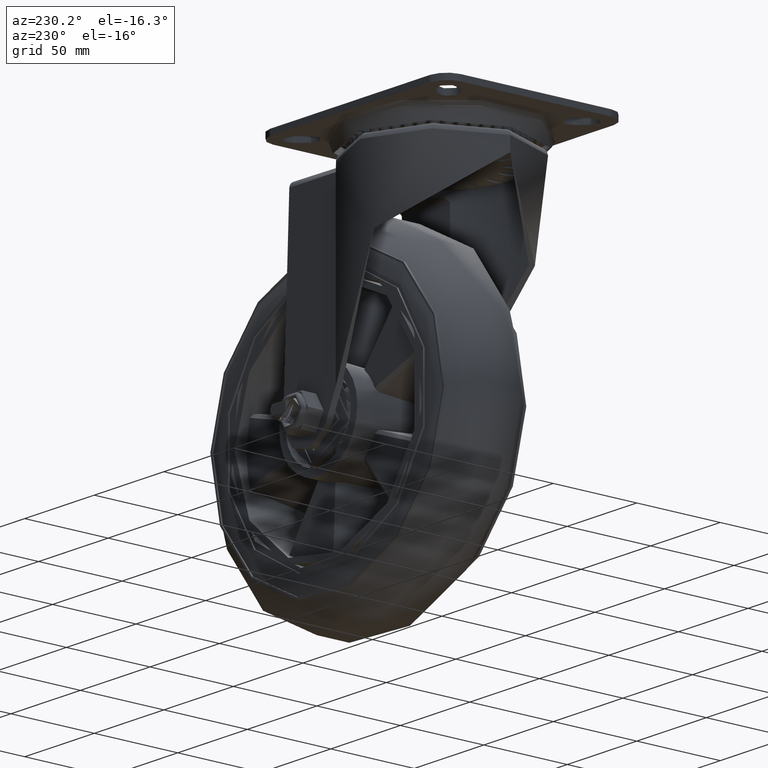
[diagram: clean part render]
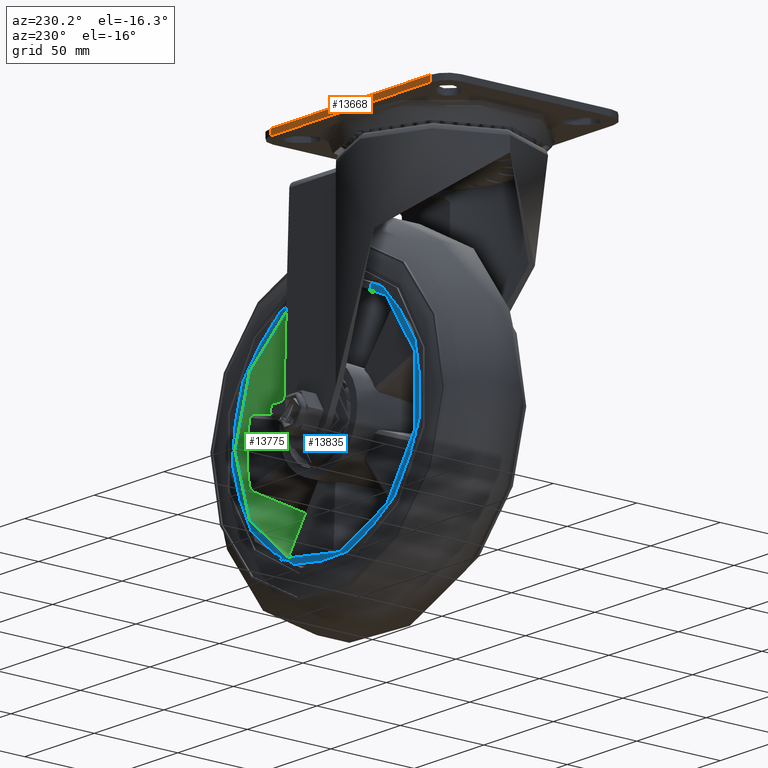
[diagram: same view with three faces highlighted in distinct colors, each labeled with its STEP entity id]
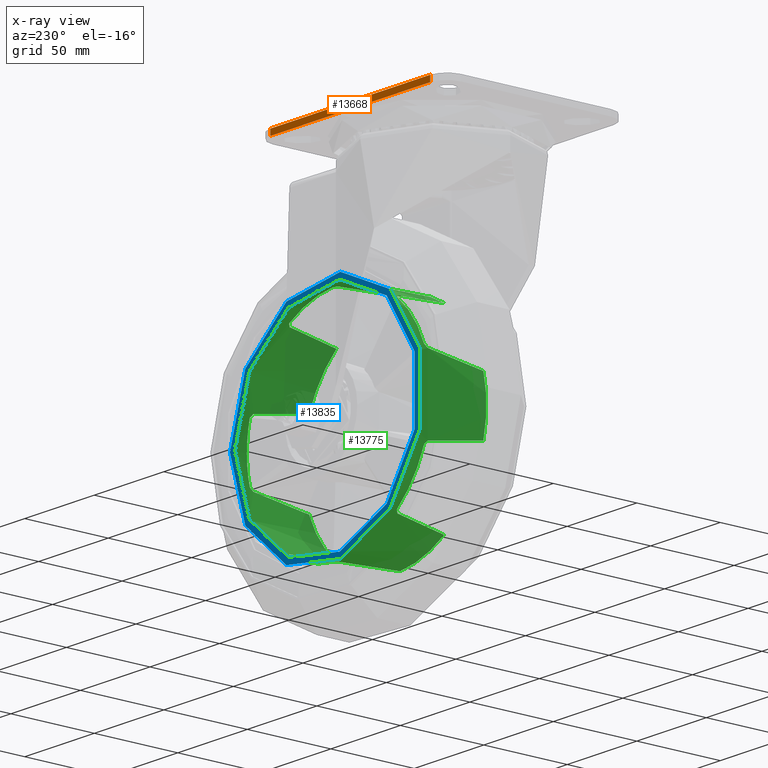
[diagram: x-ray of the same camera — body ghosted, the three highlighted faces saturated]
A machine part, auxiliary view with three faces highlighted in distinct colors.
The next image is the same camera in x-ray (body ghosted, the three faces saturated) — at least one of them is partly hidden behind the body in this view.
Their STEP definitions:

[orange] entity #13668 — the highlighted planar face has unit normal (0, 1, 0).
#935=PLANE('',#14785);
#2007=FACE_OUTER_BOUND('',#2845,.T.);
#2845=EDGE_LOOP('',(#9715,#9716,#9717,#9718));
#3748=LINE('',#19288,#4579);
#3753=LINE('',#19312,#4584);
#3761=LINE('',#20266,#4592);
#3807=LINE('',#22129,#4638);
#4579=VECTOR('',#15950,1000.);
#4584=VECTOR('',#15971,1000.);
#4592=VECTOR('',#16139,1000.);
#4638=VECTOR('',#16271,1000.);
#5959=VERTEX_POINT('',#19281);
#5962=VERTEX_POINT('',#19286);
#5972=VERTEX_POINT('',#19309);
#5973=VERTEX_POINT('',#19311);
#7321=EDGE_CURVE('',#5962,#5959,#3748,.T.);
#7331=EDGE_CURVE('',#5972,#5973,#3753,.T.);
#7438=EDGE_CURVE('',#5962,#5973,#3761,.T.);
#7487=EDGE_CURVE('',#5972,#5959,#3807,.F.);
#9715=ORIENTED_EDGE('',*,*,#7321,.F.);
#9716=ORIENTED_EDGE('',*,*,#7438,.T.);
#9717=ORIENTED_EDGE('',*,*,#7331,.F.);
#9718=ORIENTED_EDGE('',*,*,#7487,.T.);
#13668=ADVANCED_FACE('',(#2007),#935,.T.);
#14785=AXIS2_PLACEMENT_3D('',#22142,#16287,#16288);
#15950=DIRECTION('',(0.,0.,1.));
#15971=DIRECTION('',(0.,0.,-1.));
#16139=DIRECTION('',(-1.,0.,0.));
#16271=DIRECTION('',(-1.,0.,0.));
#16287=DIRECTION('center_axis',(0.,1.,0.));
#16288=DIRECTION('ref_axis',(1.,0.,0.));
#19281=CARTESIAN_POINT('',(57.5,55.,0.));
#19286=CARTESIAN_POINT('',(57.5,55.,-3.5));
#19288=CARTESIAN_POINT('',(57.5,55.,0.));
#19309=CARTESIAN_POINT('',(-57.5,55.,0.));
#19311=CARTESIAN_POINT('',(-57.5,55.,-3.5));
#19312=CARTESIAN_POINT('',(-57.5,55.,0.));
#20266=CARTESIAN_POINT('',(0.,55.,-3.5));
#22129=CARTESIAN_POINT('',(0.,55.,0.));
#22142=CARTESIAN_POINT('Origin',(0.,55.,0.));

[blue] entity #13835 — the highlighted planar face has unit normal (-0, 1, -0).
#774=FACE_BOUND('',#3038,.T.);
#1006=PLANE('',#15086);
#2174=FACE_OUTER_BOUND('',#3037,.T.);
#3037=EDGE_LOOP('',(#10563));
#3038=EDGE_LOOP('',(#10564));
#5550=CIRCLE('',#15004,69.5);
#5565=CIRCLE('',#15021,66.);
#6215=VERTEX_POINT('',#23325);
#6251=VERTEX_POINT('',#23550);
#7723=EDGE_CURVE('',#6215,#6215,#5550,.T.);
#7761=EDGE_CURVE('',#6251,#6251,#5565,.T.);
#10563=ORIENTED_EDGE('',*,*,#7723,.T.);
#10564=ORIENTED_EDGE('',*,*,#7761,.F.);
#13835=ADVANCED_FACE('',(#2174,#774),#1006,.T.);
#15004=AXIS2_PLACEMENT_3D('',#23326,#16841,#16842);
#15021=AXIS2_PLACEMENT_3D('',#23552,#16878,#16879);
#15086=AXIS2_PLACEMENT_3D('',#29875,#17013,#17014);
#16841=DIRECTION('center_axis',(-3.38669239203968E-15,1.,0.));
#16842=DIRECTION('ref_axis',(-1.,-3.38669239203968E-15,0.));
#16878=DIRECTION('center_axis',(-3.38669239203968E-15,1.,0.));
#16879=DIRECTION('ref_axis',(-1.,-3.38669239203968E-15,0.));
#17013=DIRECTION('center_axis',(-3.49148336110938E-15,1.,0.));
#17014=DIRECTION('ref_axis',(-1.,-3.49148336110938E-15,0.));
#23325=CARTESIAN_POINT('',(69.4999999999999,25.0000000000002,8.5112952540741E-15));
#23326=CARTESIAN_POINT('Origin',(-9.16062037048994E-14,25.,0.));
#23550=CARTESIAN_POINT('',(65.9999999999999,25.0000000000002,8.08266887437253E-15));
#23552=CARTESIAN_POINT('Origin',(-9.16062037048994E-14,25.,0.));
#29875=CARTESIAN_POINT('Origin',(-67.7500000000001,24.9999999999998,0.));

[green] entity #13775 — the highlighted cylindrical surface (bore or boss wall) has radius 66 mm, axis along (-0, 1, -0).
#1334=B_SPLINE_CURVE_WITH_KNOTS('',3,(#23556,#23557,#23558,#23559,#23560,
#23561,#23562,#23563,#23564,#23565),.UNSPECIFIED.,.F.,.F.,(4,2,2,2,4),(-0.278699813816485,
-0.209070207863523,-0.139448428689575,-0.0697253855537715,0.),
 .UNSPECIFIED.);
#1335=B_SPLINE_CURVE_WITH_KNOTS('',3,(#23567,#23568,#23569,#23570,#23571,
#23572,#23573),.UNSPECIFIED.,.F.,.F.,(4,3,4),(0.000513477992855273,1.61946630273181,
3.23842418673045),.UNSPECIFIED.);
#1336=B_SPLINE_CURVE_WITH_KNOTS('',3,(#23577,#23578,#23579,#23580,#23581,
#23582,#23583),.UNSPECIFIED.,.F.,.F.,(4,3,4),(0.000373308302893348,1.61933111573556,
3.23828386336791),.UNSPECIFIED.);
#1337=B_SPLINE_CURVE_WITH_KNOTS('',3,(#23585,#23586,#23587,#23588,#23589,
#23590,#23591,#23592,#23593,#23594),.UNSPECIFIED.,.F.,.F.,(4,2,2,2,4),(-0.278702463877924,
-0.209075459050144,-0.139449822925645,-0.0697292166375535,-4.15839584988476E-11),
 .UNSPECIFIED.);
#1338=B_SPLINE_CURVE_WITH_KNOTS('',3,(#23598,#23599,#23600,#23601,#23602,
#23603,#23604,#23605,#23606,#23607),.UNSPECIFIED.,.F.,.F.,(4,2,2,2,4),(-0.278699813708416,
-0.209070208613181,-0.139448428606743,-0.0697253854730322,0.),
 .UNSPECIFIED.);
#1339=B_SPLINE_CURVE_WITH_KNOTS('',3,(#23609,#23610,#23611,#23612,#23613,
#23614,#23615),.UNSPECIFIED.,.F.,.F.,(4,3,4),(0.000513477992861687,1.61946630273041,
3.23842418706975),.UNSPECIFIED.);
#1340=B_SPLINE_CURVE_WITH_KNOTS('',3,(#23619,#23620,#23621,#23622,#23623,
#23624,#23625),.UNSPECIFIED.,.F.,.F.,(4,3,4),(0.00037330972865679,1.61933111574341,
3.23828386337399),.UNSPECIFIED.);
#1341=B_SPLINE_CURVE_WITH_KNOTS('',3,(#23627,#23628,#23629,#23630,#23631,
#23632,#23633,#23634,#23635,#23636),.UNSPECIFIED.,.F.,.F.,(4,2,2,2,4),(-0.278702464616803,
-0.209075459565348,-0.13944982312942,-0.0697292168004534,-1.53057622132025E-10),
 .UNSPECIFIED.);
#1342=B_SPLINE_CURVE_WITH_KNOTS('',3,(#23640,#23641,#23642,#23643,#23644,
#23645,#23646,#23647,#23648,#23649),.UNSPECIFIED.,.F.,.F.,(4,2,2,2,4),(-0.278699813846202,
-0.209070207879666,-0.139448428698381,-0.0697253855483401,0.),
 .UNSPECIFIED.);
#1343=B_SPLINE_CURVE_WITH_KNOTS('',3,(#23651,#23652,#23653,#23654,#23655,
#23656,#23657),.UNSPECIFIED.,.F.,.F.,(4,3,4),(0.000373309048171521,1.6193311157353,
3.2382838633681),.UNSPECIFIED.);
#1344=B_SPLINE_CURVE_WITH_KNOTS('',3,(#23661,#23662,#23663,#23664,#23665,
#23666,#23667),.UNSPECIFIED.,.F.,.F.,(4,3,4),(-3.23828386338729,-1.61933111575471,
-0.000373309067048723),.UNSPECIFIED.);
#1345=B_SPLINE_CURVE_WITH_KNOTS('',3,(#23669,#23670,#23671,#23672,#23673,
#23674,#23675,#23676,#23677,#23678),.UNSPECIFIED.,.F.,.F.,(4,2,2,2,4),(-0.278702464256421,
-0.209075459328132,-0.139449823053115,-0.0697292167523369,-1.3674300580746E-10),
 .UNSPECIFIED.);
#1346=B_SPLINE_CURVE_WITH_KNOTS('',3,(#23682,#23683,#23684,#23685,#23686,
#23687,#23688,#23689,#23690,#23691),.UNSPECIFIED.,.F.,.F.,(4,2,2,2,4),(-0.278699814117309,
-0.209070208128312,-0.139448428932825,-0.0697253856493696,0.),
 .UNSPECIFIED.);
#1347=B_SPLINE_CURVE_WITH_KNOTS('',3,(#23693,#23694,#23695,#23696,#23697,
#23698,#23699),.UNSPECIFIED.,.F.,.F.,(4,3,4),(-3.23842418585543,-1.61946630273231,
-0.000513477992853393),.UNSPECIFIED.);
#1348=B_SPLINE_CURVE_WITH_KNOTS('',3,(#23703,#23704,#23705,#23706,#23707,
#23708,#23709),.UNSPECIFIED.,.F.,.F.,(4,3,4),(0.000513477992851338,1.61946630273125,
3.23842418707153),.UNSPECIFIED.);
#1349=B_SPLINE_CURVE_WITH_KNOTS('',3,(#23711,#23712,#23713,#23714,#23715,
#23716,#23717,#23718,#23719,#23720),.UNSPECIFIED.,.F.,.F.,(4,2,2,2,4),(-0.278702463947979,
-0.209075459149845,-0.13944982294725,-0.0697292158063847,-7.9559359100756E-11),
 .UNSPECIFIED.);
#1350=B_SPLINE_CURVE_WITH_KNOTS('',3,(#23724,#23725,#23726,#23727,#23728,
#23729,#23730,#23731,#23732,#23733),.UNSPECIFIED.,.F.,.F.,(4,2,2,2,4),(-0.278699813645516,
-0.209070207681675,-0.139448428490744,-0.0697253854671305,0.),
 .UNSPECIFIED.);
#1351=B_SPLINE_CURVE_WITH_KNOTS('',3,(#23735,#23736,#23737,#23738,#23739,
#23740,#23741),.UNSPECIFIED.,.F.,.F.,(4,3,4),(0.000513477992852182,1.61946630273084,
3.23842418726981),.UNSPECIFIED.);
#1352=B_SPLINE_CURVE_WITH_KNOTS('',3,(#23745,#23746,#23747,#23748,#23749,
#23750,#23751),.UNSPECIFIED.,.F.,.F.,(4,3,4),(0.000513477992853802,1.61946630273169,
3.23842418673066),.UNSPECIFIED.);
#1353=B_SPLINE_CURVE_WITH_KNOTS('',3,(#23752,#23753,#23754,#23755,#23756,
#23757,#23758,#23759,#23760,#23761),.UNSPECIFIED.,.F.,.F.,(4,2,2,2,4),(-0.278702464170252,
-0.20907545925341,-0.139449823009803,-0.0697292167108928,-1.0196582467259E-10),
 .UNSPECIFIED.);
#2114=FACE_OUTER_BOUND('',#2972,.T.);
#2972=EDGE_LOOP('',(#10241,#10242,#10243,#10244,#10245,#10246,#10247,#10248,
#10249,#10250,#10251,#10252,#10253,#10254,#10255,#10256,#10257,#10258,#10259,
#10260,#10261,#10262,#10263,#10264,#10265,#10266,#10267,#10268,#10269,#10270,
#10271,#10272,#10273,#10274));
#3935=LINE('',#23551,#4766);
#4766=VECTOR('',#16877,66.);
#5564=CIRCLE('',#15020,66.);
#5565=CIRCLE('',#15021,66.);
#5566=CIRCLE('',#15022,66.);
#5567=CIRCLE('',#15023,66.);
#5568=CIRCLE('',#15024,66.);
#5569=CIRCLE('',#15025,66.);
#5570=CIRCLE('',#15026,66.);
#5571=CIRCLE('',#15027,66.);
#5572=CIRCLE('',#15028,66.);
#5573=CIRCLE('',#15029,66.);
#5574=CIRCLE('',#15030,66.);
#5575=CIRCLE('',#15031,66.);
#6249=VERTEX_POINT('',#23547);
#6250=VERTEX_POINT('',#23548);
#6251=VERTEX_POINT('',#23550);
#6252=VERTEX_POINT('',#23553);
#6253=VERTEX_POINT('',#23555);
#6254=VERTEX_POINT('',#23566);
#6255=VERTEX_POINT('',#23574);
#6256=VERTEX_POINT('',#23576);
#6257=VERTEX_POINT('',#23584);
#6258=VERTEX_POINT('',#23595);
#6259=VERTEX_POINT('',#23597);
#6260=VERTEX_POINT('',#23608);
#6261=VERTEX_POINT('',#23616);
#6262=VERTEX_POINT('',#23618);
#6263=VERTEX_POINT('',#23626);
#6264=VERTEX_POINT('',#23637);
#6265=VERTEX_POINT('',#23639);
#6266=VERTEX_POINT('',#23650);
#6267=VERTEX_POINT('',#23658);
#6268=VERTEX_POINT('',#23660);
#6269=VERTEX_POINT('',#23668);
#6270=VERTEX_POINT('',#23679);
#6271=VERTEX_POINT('',#23681);
#6272=VERTEX_POINT('',#23692);
#6273=VERTEX_POINT('',#23700);
#6274=VERTEX_POINT('',#23702);
#6275=VERTEX_POINT('',#23710);
#6276=VERTEX_POINT('',#23721);
#6277=VERTEX_POINT('',#23723);
#6278=VERTEX_POINT('',#23734);
#6279=VERTEX_POINT('',#23742);
#6280=VERTEX_POINT('',#23744);
#7759=EDGE_CURVE('',#6249,#6250,#5564,.T.);
#7760=EDGE_CURVE('',#6250,#6251,#3935,.T.);
#7761=EDGE_CURVE('',#6251,#6251,#5565,.T.);
#7762=EDGE_CURVE('',#6250,#6252,#5566,.T.);
#7763=EDGE_CURVE('',#6253,#6252,#1334,.F.);
#7764=EDGE_CURVE('',#6254,#6253,#1335,.T.);
#7765=EDGE_CURVE('',#6254,#6255,#5567,.T.);
#7766=EDGE_CURVE('',#6256,#6255,#1336,.T.);
#7767=EDGE_CURVE('',#6257,#6256,#1337,.F.);
#7768=EDGE_CURVE('',#6257,#6258,#5568,.T.);
#7769=EDGE_CURVE('',#6259,#6258,#1338,.F.);
#7770=EDGE_CURVE('',#6260,#6259,#1339,.T.);
#7771=EDGE_CURVE('',#6260,#6261,#5569,.T.);
#7772=EDGE_CURVE('',#6262,#6261,#1340,.T.);
#7773=EDGE_CURVE('',#6263,#6262,#1341,.F.);
#7774=EDGE_CURVE('',#6263,#6264,#5570,.T.);
#7775=EDGE_CURVE('',#6265,#6264,#1342,.F.);
#7776=EDGE_CURVE('',#6265,#6266,#1343,.T.);
#7777=EDGE_CURVE('',#6266,#6267,#5571,.T.);
#7778=EDGE_CURVE('',#6267,#6268,#1344,.T.);
#7779=EDGE_CURVE('',#6269,#6268,#1345,.F.);
#7780=EDGE_CURVE('',#6269,#6270,#5572,.T.);
#7781=EDGE_CURVE('',#6271,#6270,#1346,.F.);
#7782=EDGE_CURVE('',#6271,#6272,#1347,.T.);
#7783=EDGE_CURVE('',#6272,#6273,#5573,.T.);
#7784=EDGE_CURVE('',#6273,#6274,#1348,.T.);
#7785=EDGE_CURVE('',#6275,#6274,#1349,.F.);
#7786=EDGE_CURVE('',#6275,#6276,#5574,.T.);
#7787=EDGE_CURVE('',#6277,#6276,#1350,.F.);
#7788=EDGE_CURVE('',#6278,#6277,#1351,.T.);
#7789=EDGE_CURVE('',#6278,#6279,#5575,.T.);
#7790=EDGE_CURVE('',#6279,#6280,#1352,.T.);
#7791=EDGE_CURVE('',#6249,#6280,#1353,.F.);
#10241=ORIENTED_EDGE('',*,*,#7759,.T.);
#10242=ORIENTED_EDGE('',*,*,#7760,.T.);
#10243=ORIENTED_EDGE('',*,*,#7761,.T.);
#10244=ORIENTED_EDGE('',*,*,#7760,.F.);
#10245=ORIENTED_EDGE('',*,*,#7762,.T.);
#10246=ORIENTED_EDGE('',*,*,#7763,.F.);
#10247=ORIENTED_EDGE('',*,*,#7764,.F.);
#10248=ORIENTED_EDGE('',*,*,#7765,.T.);
#10249=ORIENTED_EDGE('',*,*,#7766,.F.);
#10250=ORIENTED_EDGE('',*,*,#7767,.F.);
#10251=ORIENTED_EDGE('',*,*,#7768,.T.);
#10252=ORIENTED_EDGE('',*,*,#7769,.F.);
#10253=ORIENTED_EDGE('',*,*,#7770,.F.);
#10254=ORIENTED_EDGE('',*,*,#7771,.T.);
#10255=ORIENTED_EDGE('',*,*,#7772,.F.);
#10256=ORIENTED_EDGE('',*,*,#7773,.F.);
#10257=ORIENTED_EDGE('',*,*,#7774,.T.);
#10258=ORIENTED_EDGE('',*,*,#7775,.F.);
#10259=ORIENTED_EDGE('',*,*,#7776,.T.);
#10260=ORIENTED_EDGE('',*,*,#7777,.T.);
#10261=ORIENTED_EDGE('',*,*,#7778,.T.);
#10262=ORIENTED_EDGE('',*,*,#7779,.F.);
#10263=ORIENTED_EDGE('',*,*,#7780,.T.);
#10264=ORIENTED_EDGE('',*,*,#7781,.F.);
#10265=ORIENTED_EDGE('',*,*,#7782,.T.);
#10266=ORIENTED_EDGE('',*,*,#7783,.T.);
#10267=ORIENTED_EDGE('',*,*,#7784,.T.);
#10268=ORIENTED_EDGE('',*,*,#7785,.F.);
#10269=ORIENTED_EDGE('',*,*,#7786,.T.);
#10270=ORIENTED_EDGE('',*,*,#7787,.F.);
#10271=ORIENTED_EDGE('',*,*,#7788,.F.);
#10272=ORIENTED_EDGE('',*,*,#7789,.T.);
#10273=ORIENTED_EDGE('',*,*,#7790,.T.);
#10274=ORIENTED_EDGE('',*,*,#7791,.F.);
#13460=CYLINDRICAL_SURFACE('',#15019,66.);
#13775=ADVANCED_FACE('',(#2114),#13460,.F.);
#15019=AXIS2_PLACEMENT_3D('',#23546,#16873,#16874);
#15020=AXIS2_PLACEMENT_3D('',#23549,#16875,#16876);
#15021=AXIS2_PLACEMENT_3D('',#23552,#16878,#16879);
#15022=AXIS2_PLACEMENT_3D('',#23554,#16880,#16881);
#15023=AXIS2_PLACEMENT_3D('',#23575,#16882,#16883);
#15024=AXIS2_PLACEMENT_3D('',#23596,#16884,#16885);
#15025=AXIS2_PLACEMENT_3D('',#23617,#16886,#16887);
#15026=AXIS2_PLACEMENT_3D('',#23638,#16888,#16889);
#15027=AXIS2_PLACEMENT_3D('',#23659,#16890,#16891);
#15028=AXIS2_PLACEMENT_3D('',#23680,#16892,#16893);
#15029=AXIS2_PLACEMENT_3D('',#23701,#16894,#16895);
#15030=AXIS2_PLACEMENT_3D('',#23722,#16896,#16897);
#15031=AXIS2_PLACEMENT_3D('',#23743,#16898,#16899);
#16873=DIRECTION('center_axis',(-3.38669239203968E-15,1.,0.));
#16874=DIRECTION('ref_axis',(-1.,-3.38669239203968E-15,0.));
#16875=DIRECTION('center_axis',(3.59602151677234E-15,-1.,-6.44248801041007E-16));
#16876=DIRECTION('ref_axis',(-0.809016994374947,-2.53056257514779E-15,-0.587785252292473));
#16877=DIRECTION('',(-3.38669239203968E-15,1.,0.));
#16878=DIRECTION('center_axis',(-3.38669239203968E-15,1.,0.));
#16879=DIRECTION('ref_axis',(-1.,-3.38669239203968E-15,0.));
#16880=DIRECTION('center_axis',(3.59602151677234E-15,-1.,-6.44248801041007E-16));
#16881=DIRECTION('ref_axis',(-0.809016994374947,-2.53056257514779E-15,-0.587785252292473));
#16882=DIRECTION('center_axis',(3.38669239203968E-15,-1.,0.));
#16883=DIRECTION('ref_axis',(-1.,-3.38669239203968E-15,0.));
#16884=DIRECTION('center_axis',(3.59602151677234E-15,-1.,-6.44248801041007E-16));
#16885=DIRECTION('ref_axis',(-0.809016994374947,-2.53056257514779E-15,-0.587785252292473));
#16886=DIRECTION('center_axis',(3.38669239203968E-15,-1.,0.));
#16887=DIRECTION('ref_axis',(-1.,-3.38669239203968E-15,0.));
#16888=DIRECTION('center_axis',(3.59602151677234E-15,-1.,-6.44248801041007E-16));
#16889=DIRECTION('ref_axis',(-0.809016994374947,-2.53056257514779E-15,-0.587785252292473));
#16890=DIRECTION('center_axis',(3.38669239203968E-15,-1.,0.));
#16891=DIRECTION('ref_axis',(-1.,-3.38669239203968E-15,0.));
#16892=DIRECTION('center_axis',(3.59602151677234E-15,-1.,-6.44248801041007E-16));
#16893=DIRECTION('ref_axis',(-0.809016994374947,-2.53056257514779E-15,-0.587785252292473));
#16894=DIRECTION('center_axis',(3.38669239203968E-15,-1.,0.));
#16895=DIRECTION('ref_axis',(-1.,-3.38669239203968E-15,0.));
#16896=DIRECTION('center_axis',(3.59602151677234E-15,-1.,-6.44248801041007E-16));
#16897=DIRECTION('ref_axis',(-0.809016994374947,-2.53056257514779E-15,-0.587785252292473));
#16898=DIRECTION('center_axis',(3.38669239203968E-15,-1.,0.));
#16899=DIRECTION('ref_axis',(-1.,-3.38669239203968E-15,0.));
#23546=CARTESIAN_POINT('Origin',(-6.93889390390724E-15,3.49213689726077E-15,
0.));
#23547=CARTESIAN_POINT('',(63.8541855057159,17.7500000000004,-16.6926029548502));
#23548=CARTESIAN_POINT('',(65.9999999999999,17.7500000000003,-8.08266887437253E-15));
#23549=CARTESIAN_POINT('Origin',(-9.71885671488072E-14,17.7500000000001,
-2.98073805919023E-14));
#23550=CARTESIAN_POINT('',(65.9999999999999,25.0000000000002,8.08266887437253E-15));
#23551=CARTESIAN_POINT('',(66.,2.2701383477188E-13,-8.08266887437253E-15));
#23552=CARTESIAN_POINT('Origin',(-9.16062037048994E-14,25.,0.));
#23553=CARTESIAN_POINT('',(63.8541855057641,17.7500000000003,16.6926029548637));
#23554=CARTESIAN_POINT('Origin',(-9.71885671488072E-14,17.7500000000001,
-2.98073805919023E-14));
#23555=CARTESIAN_POINT('',(63.3262397564301,16.1048068555723,18.5887661496391));
#23556=CARTESIAN_POINT('Ctrl Pts',(63.8541855056668,17.7500000000004,16.6926029548383));
#23557=CARTESIAN_POINT('Ctrl Pts',(63.7954814621938,17.7499999998815,16.9171634318353));
#23558=CARTESIAN_POINT('Ctrl Pts',(63.7359515862734,17.7096648925106,17.1399099495883));
#23559=CARTESIAN_POINT('Ctrl Pts',(63.6207160050831,17.5507315383626,17.5628164566366));
#23560=CARTESIAN_POINT('Ctrl Pts',(63.5663264586295,17.4339369557345,17.7582058976295));
#23561=CARTESIAN_POINT('Ctrl Pts',(63.4694650533126,17.1362185800874,18.1013489657747));
#23562=CARTESIAN_POINT('Ctrl Pts',(63.4276754615377,16.9571864022433,18.2467464772297));
#23563=CARTESIAN_POINT('Ctrl Pts',(63.3623859556726,16.5535803972961,18.4721904058013));
#23564=CARTESIAN_POINT('Ctrl Pts',(63.3396415731566,16.3335463408901,18.5497036553513));
#23565=CARTESIAN_POINT('Ctrl Pts',(63.3280275317822,16.1048155229611,18.5892691877285));
#23566=CARTESIAN_POINT('',(61.4707870763458,-15.7499999995686,24.0279490658177));
#23567=CARTESIAN_POINT('Ctrl Pts',(61.4707870755257,-15.7499999995398,24.0279490659367));
#23568=CARTESIAN_POINT('Ctrl Pts',(61.8193544099587,-10.4391074672213,23.136208021774));
#23569=CARTESIAN_POINT('Ctrl Pts',(62.1487450166439,-5.13324009265218,22.2362997163353));
#23570=CARTESIAN_POINT('Ctrl Pts',(62.4586345960595,0.177374570169793,21.3288293822073));
#23571=CARTESIAN_POINT('Ctrl Pts',(62.7685251438862,5.48800582876793,20.4213562122165));
#23572=CARTESIAN_POINT('Ctrl Pts',(63.0583598741962,10.7938914280985,19.5079453645024));
#23573=CARTESIAN_POINT('Ctrl Pts',(63.3280269165353,16.104803465082,18.5892712836869));
#23574=CARTESIAN_POINT('',(41.8474553964488,-15.7499999995686,51.0371480094372));
#23575=CARTESIAN_POINT('Origin',(4.53054497439468E-14,-15.7499999999999,
0.));
#23576=CARTESIAN_POINT('',(37.2478514228821,16.1048068975623,54.4825882855258));
#23577=CARTESIAN_POINT('Ctrl Pts',(37.2488841241802,16.1048034704046,54.4841319239219));
#23578=CARTESIAN_POINT('Ctrl Pts',(38.0392633964569,10.7938914316459,53.9437774226431));
#23579=CARTESIAN_POINT('Ctrl Pts',(38.8184048782685,5.48800583054323,53.3858687387621));
#23580=CARTESIAN_POINT('Ctrl Pts',(39.5857017045332,0.177374570169752,52.8107206822545));
#23581=CARTESIAN_POINT('Ctrl Pts',(40.3529961327313,-5.13324009265339,52.2355744232826));
#23582=CARTESIAN_POINT('Ctrl Pts',(41.1070724954337,-10.4391074672238,51.644218380628));
#23583=CARTESIAN_POINT('Ctrl Pts',(41.8474553963082,-15.7499999995399,51.0371480086201));
#23584=CARTESIAN_POINT('',(35.6076372977754,17.7500000000002,55.5706412242118));
#23585=CARTESIAN_POINT('Ctrl Pts',(37.2488823271658,16.1048155296551,54.484133152478));
#23586=CARTESIAN_POINT('Ctrl Pts',(37.2148896414822,16.3332275962912,54.5073727540968));
#23587=CARTESIAN_POINT('Ctrl Pts',(37.148337093144,16.5529695154261,54.5528620959939));
#23588=CARTESIAN_POINT('Ctrl Pts',(36.9545310970618,16.956133400603,54.6843336112603));
#23589=CARTESIAN_POINT('Ctrl Pts',(36.8294479132439,17.1350197517409,54.7688182637391));
#23590=CARTESIAN_POINT('Ctrl Pts',(36.5332759104328,17.4330827461715,54.9668220416323));
#23591=CARTESIAN_POINT('Ctrl Pts',(36.3640891487899,17.5501881836481,55.0790446755667));
#23592=CARTESIAN_POINT('Ctrl Pts',(35.9970531349931,17.709551581627,55.3196196614026));
#23593=CARTESIAN_POINT('Ctrl Pts',(35.803339180547,17.7499999999517,55.4452426053241));
#23594=CARTESIAN_POINT('Ctrl Pts',(35.6076372977754,17.7500000000002,55.5706412242118));
#23595=CARTESIAN_POINT('',(3.8564196685882,17.7500000000001,65.8872372113122));
#23596=CARTESIAN_POINT('Origin',(-9.71885671488072E-14,17.7500000000001,
-2.98073805919023E-14));
#23597=CARTESIAN_POINT('',(1.88991709374713,16.1048068598346,65.9710776176306));
#23598=CARTESIAN_POINT('Ctrl Pts',(3.8564196685882,17.7500000000001,65.8872372113122));
#23599=CARTESIAN_POINT('Ctrl Pts',(3.62470941951166,17.7499999999074,65.9007993517171));
#23600=CARTESIAN_POINT('Ctrl Pts',(3.39446915165137,17.7096648936198,65.9130155346062));
#23601=CARTESIAN_POINT('Ctrl Pts',(2.95665140880327,17.5507315417784,65.934105281994));
#23602=CARTESIAN_POINT('Ctrl Pts',(2.75401771074302,17.4339369584596,65.9427564073374));
#23603=CARTESIAN_POINT('Ctrl Pts',(2.39773743679667,17.1362185817619,65.9566727762908));
#23604=CARTESIAN_POINT('Ctrl Pts',(2.24654249163808,16.9571864043322,65.961858814711));
#23605=CARTESIAN_POINT('Ctrl Pts',(2.01195700635331,16.5535804004248,65.9694308099479));
#23606=CARTESIAN_POINT('Ctrl Pts',(1.93120912376177,16.3335463446519,65.971752528167));
#23607=CARTESIAN_POINT('Ctrl Pts',(1.88999112906065,16.1048155272237,65.9729333403637));
#23608=CARTESIAN_POINT('',(-3.85641966805917,-15.7499999995688,65.8872372120638));
#23609=CARTESIAN_POINT('Ctrl Pts',(-3.85641966842578,-15.7499999995401,
65.8872372113204));
#23610=CARTESIAN_POINT('Ctrl Pts',(-2.90061030750404,-10.4391074672261,
65.9431813088728));
#23611=CARTESIAN_POINT('Ctrl Pts',(-1.94295935429484,-5.13324009265471,
65.9783634320076));
#23612=CARTESIAN_POINT('Ctrl Pts',(-0.984142633258344,0.177374570169552,
65.9926621807061));
#23613=CARTESIAN_POINT('Ctrl Pts',(-0.0253229156979588,5.48800582989218,
66.0069609740915));
#23614=CARTESIAN_POINT('Ctrl Pts',(0.932946280503814,10.7938914303453,66.0003507082058));
#23615=CARTESIAN_POINT('Ctrl Pts',(1.88998895052165,16.1048034684503,65.9729334027739));
#23616=CARTESIAN_POINT('',(-35.6076372986452,-15.749999999569,55.570641224509));
#23617=CARTESIAN_POINT('Origin',(4.53054497439468E-14,-15.7499999999999,
0.));
#23618=CARTESIAN_POINT('',(-40.3058015342264,16.1048068799024,52.26085748038));
#23619=CARTESIAN_POINT('Ctrl Pts',(-40.3069504830651,16.1048034564584,52.2623166608185));
#23620=CARTESIAN_POINT('Ctrl Pts',(-39.5488021870201,10.7938914223599,52.8470332936396));
#23621=CARTESIAN_POINT('Ctrl Pts',(-38.777431539479,5.48800582589593,53.4156376118916));
#23622=CARTESIAN_POINT('Ctrl Pts',(-37.9933254741433,0.177374570169404,
53.9676497342177));
#23623=CARTESIAN_POINT('Ctrl Pts',(-37.2092218587231,-5.13324009265212,
54.5196601317987));
#23624=CARTESIAN_POINT('Ctrl Pts',(-36.4137864297748,-10.4391074672209,
55.0540903034244));
#23625=CARTESIAN_POINT('Ctrl Pts',(-35.6076372979116,-15.7499999995402,
55.5706412241231));
#23626=CARTESIAN_POINT('',(-41.8474553979063,17.7499999999999,51.0371480072934));
#23627=CARTESIAN_POINT('Ctrl Pts',(-40.3069522230707,16.1048155119994,52.2623153188519));
#23628=CARTESIAN_POINT('Ctrl Pts',(-40.3395587113317,16.3332275802503,52.2371677884281));
#23629=CARTESIAN_POINT('Ctrl Pts',(-40.4033875120551,16.5529695015847,52.1879295354832));
#23630=CARTESIAN_POINT('Ctrl Pts',(-40.5883136961368,16.9561333916207,52.0442360152862));
#23631=CARTESIAN_POINT('Ctrl Pts',(-40.7073162041053,17.1350197451753,51.9513820322399));
#23632=CARTESIAN_POINT('Ctrl Pts',(-40.9871511684901,17.4330827429493,51.7308922520702));
#23633=CARTESIAN_POINT('Ctrl Pts',(-41.1461628200458,17.550188181589,51.6046647812046));
#23634=CARTESIAN_POINT('Ctrl Pts',(-41.4883835937618,17.7095515812096,51.3299345476171));
#23635=CARTESIAN_POINT('Ctrl Pts',(-41.6677190164799,17.7499999998213,51.184521254031));
#23636=CARTESIAN_POINT('Ctrl Pts',(-41.8474553979153,17.7499999999999,51.0371480073044));
#23637=CARTESIAN_POINT('',(-61.4707870751973,17.7499999999998,24.0279490667184));
#23638=CARTESIAN_POINT('Origin',(-9.71885671488072E-14,17.7500000000001,
-2.98073805919023E-14));
#23639=CARTESIAN_POINT('',(-62.1582067526116,16.1048068529149,22.1836020953999));
#23640=CARTESIAN_POINT('Ctrl Pts',(-61.4707870752181,17.7499999999998,24.0279490667265));
#23641=CARTESIAN_POINT('Ctrl Pts',(-61.5552878430688,17.7499999998403,23.8117704534867));
#23642=CARTESIAN_POINT('Ctrl Pts',(-61.638054279818,17.709664892424,23.5965739522929));
#23643=CARTESIAN_POINT('Ctrl Pts',(-61.7934049442405,17.5507315379444,23.1867016258475));
#23644=CARTESIAN_POINT('Ctrl Pts',(-61.8642499086983,17.4339369550846,22.9966588743179));
#23645=CARTESIAN_POINT('Ctrl Pts',(-61.9875818204846,17.1362185788583,22.6621165953915));
#23646=CARTESIAN_POINT('Ctrl Pts',(-62.0392358434199,16.9571864006673,22.5199242321746));
#23647=CARTESIAN_POINT('Ctrl Pts',(-62.1189281397569,16.5535803950688,22.2991600548412));
#23648=CARTESIAN_POINT('Ctrl Pts',(-62.1460886925103,16.3335463384013,22.2230817066377));
#23649=CARTESIAN_POINT('Ctrl Pts',(-62.1599487718217,16.1048155203134,22.1842459570865));
#23650=CARTESIAN_POINT('',(-63.8541855060899,-15.7499999995691,16.6926029560646));
#23651=CARTESIAN_POINT('Ctrl Pts',(-62.1599495072483,16.1048034630685,22.1842438964295));
#23652=CARTESIAN_POINT('Ctrl Pts',(-62.4817673634942,10.7938914267601,21.2825146423543));
#23653=CARTESIAN_POINT('Ctrl Pts',(-62.7841755666429,5.48800582809793,20.3731891637425));
#23654=CARTESIAN_POINT('Ctrl Pts',(-63.066868193191,0.177374570169326,19.4568788535588));
#23655=CARTESIAN_POINT('Ctrl Pts',(-63.3495599363576,-5.13324009265598,
18.540571406738));
#23656=CARTESIAN_POINT('Ctrl Pts',(-63.612030168114,-10.4391074672285,17.618919353405));
#23657=CARTESIAN_POINT('Ctrl Pts',(-63.8541855054959,-15.7499999995403,
16.6926029554861));
#23658=CARTESIAN_POINT('',(-63.8541855060899,-15.7499999995691,-16.6926029560646));
#23659=CARTESIAN_POINT('Origin',(4.53054497439468E-14,-15.7499999999999,
0.));
#23660=CARTESIAN_POINT('',(-62.1582067026156,16.1048068882151,-22.183602083796));
#23661=CARTESIAN_POINT('Ctrl Pts',(-63.8541855054961,-15.7499999995403,
-16.6926029554862));
#23662=CARTESIAN_POINT('Ctrl Pts',(-63.6120301681139,-10.4391074672215,
-17.6189193534062));
#23663=CARTESIAN_POINT('Ctrl Pts',(-63.3495599363574,-5.13324009265248,
-18.5405714067386));
#23664=CARTESIAN_POINT('Ctrl Pts',(-63.066868193191,0.177374570169302,-19.4568788535588));
#23665=CARTESIAN_POINT('Ctrl Pts',(-62.784175566643,5.48800582809685,-20.3731891637424));
#23666=CARTESIAN_POINT('Ctrl Pts',(-62.4817673634945,10.7938914267579,-21.282514642354));
#23667=CARTESIAN_POINT('Ctrl Pts',(-62.1599495072484,16.1048034630679,-22.1842438964295));
#23668=CARTESIAN_POINT('',(-61.4707870751383,17.7499999999998,-24.0279490666967));
#23669=CARTESIAN_POINT('Ctrl Pts',(-62.1599487718217,16.1048155203134,-22.1842459570866));
#23670=CARTESIAN_POINT('Ctrl Pts',(-62.1461080073929,16.3332275877791,-22.2230275866052));
#23671=CARTESIAN_POINT('Ctrl Pts',(-62.1190038296997,16.5529695080592,-22.2989478419019));
#23672=CARTESIAN_POINT('Ctrl Pts',(-62.0394885038593,16.9561333957929,-22.5192268359855));
#23673=CARTESIAN_POINT('Ctrl Pts',(-61.9879529154031,17.1350197482106,-22.6610984058265));
#23674=CARTESIAN_POINT('Ctrl Pts',(-61.8647284326382,17.4330827444281,-22.9953723618481));
#23675=CARTESIAN_POINT('Ctrl Pts',(-61.7938162765139,17.5501881825326,-23.18560786304));
#23676=CARTESIAN_POINT('Ctrl Pts',(-61.6382843325464,17.7095515814004,-23.5959754709557));
#23677=CARTESIAN_POINT('Ctrl Pts',(-61.555405765426,17.7499999998402,-23.8114687723034));
#23678=CARTESIAN_POINT('Ctrl Pts',(-61.4707870752177,17.7499999999998,-24.0279490667277));
#23679=CARTESIAN_POINT('',(-41.8474553979942,17.7499999999999,-51.0371480074081));
#23680=CARTESIAN_POINT('Origin',(-9.71885671488072E-14,17.7500000000001,
-2.98073805919023E-14));
#23681=CARTESIAN_POINT('',(-40.3058015607661,16.1048068446078,-52.2608575244565));
#23682=CARTESIAN_POINT('Ctrl Pts',(-41.8474553979116,17.7499999999999,-51.0371480073074));
#23683=CARTESIAN_POINT('Ctrl Pts',(-41.6679694923018,17.749999999821,-51.1843158786095));
#23684=CARTESIAN_POINT('Ctrl Pts',(-41.4888816930992,17.7096648922257,-51.3295308135954));
#23685=CARTESIAN_POINT('Ctrl Pts',(-41.1470759415731,17.5507315369692,-51.6039355897143));
#23686=CARTESIAN_POINT('Ctrl Pts',(-40.9882268424591,17.4339369535581,-51.7300395945971));
#23687=CARTESIAN_POINT('Ctrl Pts',(-40.708169885214,17.1362185757313,-51.9507144621795));
#23688=CARTESIAN_POINT('Ctrl Pts',(-40.5888988829038,16.9571863964083,-52.0437802136963));
#23689=CARTESIAN_POINT('Ctrl Pts',(-40.4035659490583,16.5535803885519,-52.1877919726783));
#23690=CARTESIAN_POINT('Ctrl Pts',(-40.3396042139085,16.3335463308498,-52.2371326948779));
#23691=CARTESIAN_POINT('Ctrl Pts',(-40.3069522230706,16.1048155119994,-52.2623153188519));
#23692=CARTESIAN_POINT('',(-35.6076372986452,-15.749999999569,-55.570641224509));
#23693=CARTESIAN_POINT('Ctrl Pts',(-40.3069504830653,16.1048034564598,-52.2623166608184));
#23694=CARTESIAN_POINT('Ctrl Pts',(-39.5488021870193,10.7938914223544,-52.8470332936401));
#23695=CARTESIAN_POINT('Ctrl Pts',(-38.7774315394786,5.48800582589315,-53.4156376118919));
#23696=CARTESIAN_POINT('Ctrl Pts',(-37.9933254741434,0.177374570169425,
-53.9676497342177));
#23697=CARTESIAN_POINT('Ctrl Pts',(-37.2092218587232,-5.13324009265176,
-54.5196601317986));
#23698=CARTESIAN_POINT('Ctrl Pts',(-36.4137864297751,-10.43910746722,-55.0540903034244));
#23699=CARTESIAN_POINT('Ctrl Pts',(-35.6076372979117,-15.7499999995402,
-55.5706412241231));
#23700=CARTESIAN_POINT('',(-3.85641966805922,-15.7499999995688,-65.8872372120638));
#23701=CARTESIAN_POINT('Origin',(4.53054497439468E-14,-15.7499999999999,
0.));
#23702=CARTESIAN_POINT('',(1.88991709813826,16.1048068951396,-65.9710775665646));
#23703=CARTESIAN_POINT('Ctrl Pts',(-3.85641966842584,-15.74999999954,-65.8872372113204));
#23704=CARTESIAN_POINT('Ctrl Pts',(-2.90061030750359,-10.4391074672233,
-65.9431813088728));
#23705=CARTESIAN_POINT('Ctrl Pts',(-1.94295935429463,-5.1332400926533,-65.9783634320076));
#23706=CARTESIAN_POINT('Ctrl Pts',(-0.984142633258378,0.17737457016956,
-65.9926621807061));
#23707=CARTESIAN_POINT('Ctrl Pts',(-0.025322915698191,5.48800582989105,
-66.0069609740915));
#23708=CARTESIAN_POINT('Ctrl Pts',(0.932946280503386,10.793891430343,-66.0003507082058));
#23709=CARTESIAN_POINT('Ctrl Pts',(1.8899889505216,16.1048034684501,-65.9729334027739));
#23710=CARTESIAN_POINT('',(3.85641966858817,17.7500000000001,-65.8872372113122));
#23711=CARTESIAN_POINT('Ctrl Pts',(1.88999112906061,16.1048155272237,-65.9729333403637));
#23712=CARTESIAN_POINT('Ctrl Pts',(1.93115168390633,16.3332275939417,-65.9717541737027));
#23713=CARTESIAN_POINT('Ctrl Pts',(2.01173179030912,16.552969513247,-65.9694372179584));
#23714=CARTESIAN_POINT('Ctrl Pts',(2.24580115186476,16.9561333991643,-65.9618836018011));
#23715=CARTESIAN_POINT('Ctrl Pts',(2.39665440603166,17.1350197507849,-65.9567110706631));
#23716=CARTESIAN_POINT('Ctrl Pts',(2.75264629232356,17.433082747622,-65.9428139564456));
#23717=CARTESIAN_POINT('Ctrl Pts',(2.95548406968939,17.5501881862885,-65.9341584909474));
#23718=CARTESIAN_POINT('Ctrl Pts',(3.39382887181751,17.7095515825883,-65.9130493868517));
#23719=CARTESIAN_POINT('Ctrl Pts',(3.62438606361526,17.7499999999073,-65.9008182779325));
#23720=CARTESIAN_POINT('Ctrl Pts',(3.85641966858817,17.7500000000001,-65.8872372113122));
#23721=CARTESIAN_POINT('',(35.6076372977754,17.7500000000002,-55.5706412242118));
#23722=CARTESIAN_POINT('Origin',(-9.71885671488072E-14,17.7500000000001,
-2.98073805919023E-14));
#23723=CARTESIAN_POINT('',(37.2478514564558,16.104806862256,-54.4825883242799));
#23724=CARTESIAN_POINT('Ctrl Pts',(35.6076372977754,17.7500000000002,-55.5706412242118));
#23725=CARTESIAN_POINT('Ctrl Pts',(35.803066455603,17.7499999999517,-55.4454173575075));
#23726=CARTESIAN_POINT('Ctrl Pts',(35.996515239919,17.7096648926507,-55.3199686213765));
#23727=CARTESIAN_POINT('Ctrl Pts',(36.36311347635,17.5507315390543,-55.079687773217));
#23728=CARTESIAN_POINT('Ctrl Pts',(36.5321325833788,17.4339369568175,-54.9675815827677));
#23729=CARTESIAN_POINT('Ctrl Pts',(36.8285492143154,17.1362185824027,-54.7694238722955));
#23730=CARTESIAN_POINT('Ctrl Pts',(36.9539167712606,16.9571864054945,-54.6847493065606));
#23731=CARTESIAN_POINT('Ctrl Pts',(37.148151123052,16.5535804024379,-54.5529892904402));
#23732=CARTESIAN_POINT('Ctrl Pts',(37.2148422044534,16.3335463469151,-54.5074051851222));
#23733=CARTESIAN_POINT('Ctrl Pts',(37.2488823271658,16.1048155296551,-54.484133152478));
#23734=CARTESIAN_POINT('',(41.8474553964488,-15.7499999995686,-51.0371480094372));
#23735=CARTESIAN_POINT('Ctrl Pts',(41.8474553963083,-15.7499999995399,-51.0371480086201));
#23736=CARTESIAN_POINT('Ctrl Pts',(41.1070724954339,-10.4391074672245,-51.6442183806282));
#23737=CARTESIAN_POINT('Ctrl Pts',(40.3529961327313,-5.13324009265394,-52.2355744232825));
#23738=CARTESIAN_POINT('Ctrl Pts',(39.5857017045332,0.177374570169737,-52.8107206822546));
#23739=CARTESIAN_POINT('Ctrl Pts',(38.8184048782682,5.48800583054517,-53.3858687387624));
#23740=CARTESIAN_POINT('Ctrl Pts',(38.0392633964562,10.7938914316499,-53.9437774226433));
#23741=CARTESIAN_POINT('Ctrl Pts',(37.2488841241801,16.1048034704049,-54.484131923922));
#23742=CARTESIAN_POINT('',(61.4707870763458,-15.7499999995686,-24.0279490658177));
#23743=CARTESIAN_POINT('Origin',(4.53054497439468E-14,-15.7499999999999,
0.));
#23744=CARTESIAN_POINT('',(63.3262397091774,16.1048068908745,-18.5887661296554));
#23745=CARTESIAN_POINT('Ctrl Pts',(61.4707870755252,-15.7499999995398,-24.0279490659366));
#23746=CARTESIAN_POINT('Ctrl Pts',(61.8193544099585,-10.4391074672216,-23.136208021774));
#23747=CARTESIAN_POINT('Ctrl Pts',(62.1487450166439,-5.13324009265236,-22.2362997163354));
#23748=CARTESIAN_POINT('Ctrl Pts',(62.4586345960595,0.177374570169836,-21.3288293822073));
#23749=CARTESIAN_POINT('Ctrl Pts',(62.7685251438863,5.48800582876967,-20.4213562122162));
#23750=CARTESIAN_POINT('Ctrl Pts',(63.0583598741965,10.7938914281019,-19.5079453645019));
#23751=CARTESIAN_POINT('Ctrl Pts',(63.3280269165352,16.1048034650816,-18.589271283687));
#23752=CARTESIAN_POINT('Ctrl Pts',(63.3280275317822,16.1048155229611,-18.5892691877285));
#23753=CARTESIAN_POINT('Ctrl Pts',(63.3396253882657,16.3332275902322,-18.5497587923879));
#23754=CARTESIAN_POINT('Ctrl Pts',(63.3623224544789,16.5529695102183,-18.4724065791338));
#23755=CARTESIAN_POINT('Ctrl Pts',(63.4274699489079,16.95613339725,-18.2474591927621));
#23756=CARTESIAN_POINT('Ctrl Pts',(63.4691667985631,17.1350197493043,-18.102390822678));
#23757=CARTESIAN_POINT('Ctrl Pts',(63.5659573995313,17.4330827449857,-17.759527977543));
#23758=CARTESIAN_POINT('Ctrl Pts',(63.6204058822009,17.550188182892,-17.5639431045031));
#23759=CARTESIAN_POINT('Ctrl Pts',(63.7357859243179,17.7095515814746,-17.1405293528316));
#23760=CARTESIAN_POINT('Ctrl Pts',(63.7953995396251,17.7499999998814,-16.9174768100971));
#23761=CARTESIAN_POINT('Ctrl Pts',(63.8541855056671,17.7500000000004,-16.6926029548375));